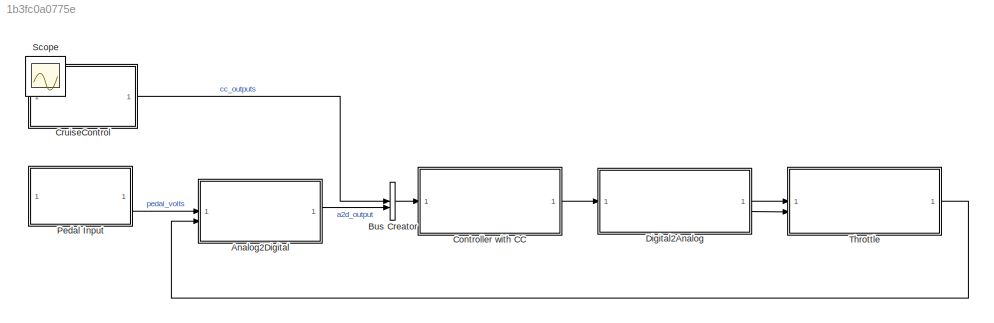
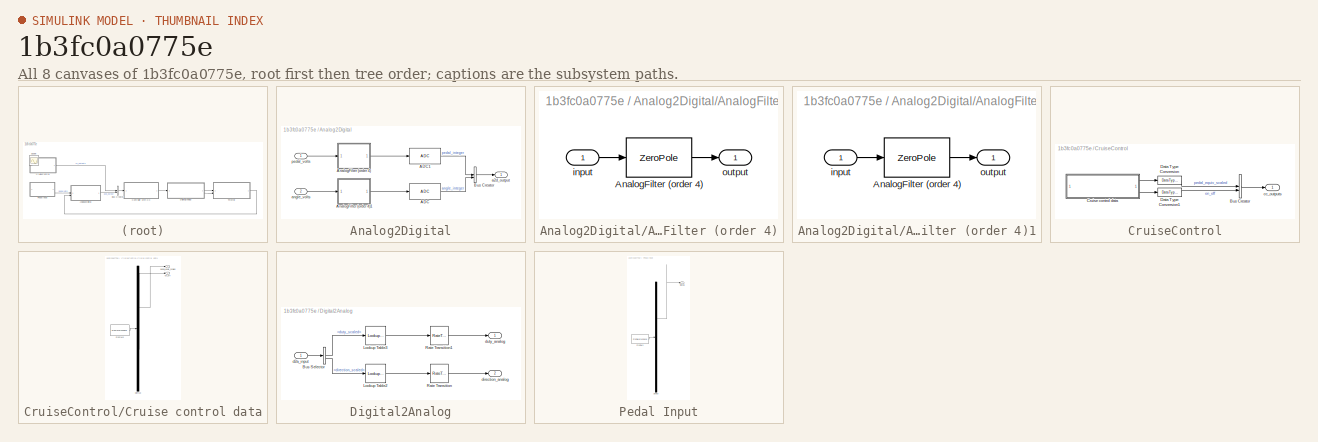
[diagram: thumbnail index - all 8 canvases of the model, root first then tree order]
MODEL slx_1b3fc0a0775e
KIND model
CONFIG AbsTol = auto
CONFIG EnableMultiTasking = on
CONFIG FixedStep = auto
CONFIG MaxStep = auto
CONFIG MinStep = auto
CONFIG PreLoadFcn = load busData\nload globData
CONFIG RelTol = 1e-3
CONFIG SampleTimeConstraint = Unconstrained
CONFIG SolverName = ode45
CONFIG StartTime = 0.0
CONFIG StopTime = 10.0
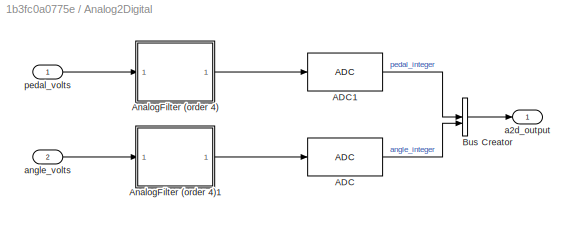
BLOCK [SubSystem] Analog2Digital
  AttributesFormatString = (Hardware / software interface)
  MinAlgLoopOccurrences = on
BLOCK [Reference] Analog2Digital/ADC  REF=adcUtils/ADC
  SourceBlock = adcUtils/ADC
BLOCK [Reference] Analog2Digital/ADC1  REF=adcUtils/ADC
  SourceBlock = adcUtils/ADC
BLOCK [SubSystem] Analog2Digital/AnalogFilter (order 4)
  VariantControl = analogFilter==1
BLOCK [ZeroPole] Analog2Digital/AnalogFilter (order 4)/AnalogFilter (order 4)
  Gain = 3.9899e9
  Poles = 1.0e2*[-2.2739+0.6809i,-2.2739-0.6809i,-1.6518+2.0864i,-1.6518-2.0864i]
  Zeros = []
BLOCK [Inport] Analog2Digital/AnalogFilter (order 4)/input
BLOCK [Outport] Analog2Digital/AnalogFilter (order 4)/output
  VectorParamsAs1DForOutWhenUnconnected = off
BLOCK [SubSystem] Analog2Digital/AnalogFilter (order 4)1
  VariantControl = analogFilter==1
BLOCK [ZeroPole] Analog2Digital/AnalogFilter (order 4)1/AnalogFilter (order 4)
  Gain = 3.9899e9
  Poles = 1.0e2*[-2.2739+0.6809i,-2.2739-0.6809i,-1.6518+2.0864i,-1.6518-2.0864i]
  Zeros = []
BLOCK [Inport] Analog2Digital/AnalogFilter (order 4)1/input
BLOCK [Outport] Analog2Digital/AnalogFilter (order 4)1/output
  VectorParamsAs1DForOutWhenUnconnected = off
BLOCK [BusCreator] Analog2Digital/Bus Creator
  DisplayOption = bar
  InheritFromInputs = on
  Inputs = 2
  OutDataTypeStr = Bus: a2d_output_bus
BLOCK [Outport] Analog2Digital/a2d_output
  OutDataTypeStr = Bus: a2d_output_bus
  SampleTime = Ts
  VectorParamsAs1DForOutWhenUnconnected = off
BLOCK [Inport] Analog2Digital/angle_volts
  OutDataTypeStr = double
  Port = 2
  PortDimensions = 1
  SampleTime = 0
BLOCK [Inport] Analog2Digital/pedal_volts
  OutDataTypeStr = double
  PortDimensions = 1
  SampleTime = 0
BLOCK [BusCreator] Bus Creator
  DisplayOption = bar
  InheritFromInputs = on
  Inputs = 2
  OutDataTypeStr = Bus: ctrl_input_bus
BLOCK [ModelReference] Controller with CC
  AttributesFormatString = (Software)
  ModelNameDialog = controller
  ModelReferenceVersion = 8.0
BLOCK [SubSystem] CruiseControl
  MinAlgLoopOccurrences = on
BLOCK [BusCreator] CruiseControl/Bus Creator
  DisplayOption = bar
  InheritFromInputs = on
  Inputs = 2
  OutDataTypeStr = Bus: cc_outputs_bus
BLOCK [SubSystem] CruiseControl/Cruise control data
  ClipboardFcn = sigbuilder_block('clipboard');
  CloseFcn = sigbuilder_block('close');
  ContinueFcn = sigbuilder_block('continue')
  CopyFcn = sigbuilder_block('copy');
  DeleteFcn = sigbuilder_block('delete');
  LoadFcn = sigbuilder_block('load');
  MaskHideContents = on
  ModelCloseFcn = sigbuilder_block('modelClose');
  NameChangeFcn = sigbuilder_block('namechange');
  OpenFcn = sigbuilder_block('open',[44.069 296.69 550.552 398.483 ]);
  PauseFcn = sigbuilder_block('pause')
  PreSaveFcn = sigbuilder_block('preSave');
  StartFcn = sigbuilder_block('start');
  StopFcn = sigbuilder_block('stop');
  Tag = STV Subsys
BLOCK [Demux] CruiseControl/Cruise control data/Demux
  DisplayOption = none
  Outputs = 2
  Tag = STV Demux
BLOCK [FromWorkspace] CruiseControl/Cruise control data/FromWs
  Tag = STV FromWs
  VariableName = tuvar
BLOCK [Outport] CruiseControl/Cruise control data/on_off
  Port = 2
  Tag = STV Outport
  VectorParamsAs1DForOutWhenUnconnected = off
BLOCK [Outport] CruiseControl/Cruise control data/pedal_equiv_scaled
  Tag = STV Outport
  VectorParamsAs1DForOutWhenUnconnected = off
BLOCK [DataTypeConversion] CruiseControl/Data Type Conversion
  OutDataTypeStr = double
  RndMeth = Floor
  SampleTime = Ts
  SaturateOnIntegerOverflow = off
BLOCK [DataTypeConversion] CruiseControl/Data Type Conversion1
  OutDataTypeStr = boolean
  RndMeth = Floor
  SampleTime = Ts
  SaturateOnIntegerOverflow = off
BLOCK [Outport] CruiseControl/cc_outputs
  OutDataTypeStr = Bus: cc_outputs_bus
  SampleTime = Ts
  VectorParamsAs1DForOutWhenUnconnected = off
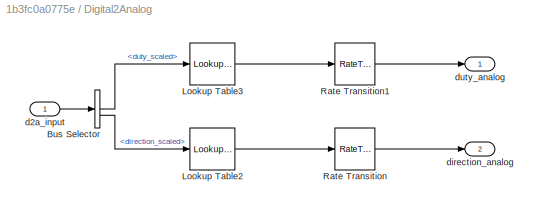
BLOCK [SubSystem] Digital2Analog
  AttributesFormatString = (Software / hardware interface)
  MinAlgLoopOccurrences = on
BLOCK [BusSelector] Digital2Analog/Bus Selector
  OutputSignals = duty_scaled,direction_scaled
BLOCK [Lookup_n-D] Digital2Analog/Lookup Table2
  AttributesFormatString = Output data type: %<OutDataTypeStr>
  BreakpointsForDimension1 = digital_range
  ExtrapMethod = Clip
  InputPortMap = u0
  NumberOfTableDimensions = 1
  OutDataTypeStr = double
  Table = direction_range_analog
BLOCK [Lookup_n-D] Digital2Analog/Lookup Table3
  AttributesFormatString = Output data type: %<OutDataTypeStr>
  BreakpointsForDimension1 = uint_range_10bit
  ExtrapMethod = Clip
  InputPortMap = u0
  NumberOfTableDimensions = 1
  OutDataTypeStr = double
  Table = duty_range_analog
BLOCK [RateTransition] Digital2Analog/Rate Transition
  Integrity = off
  OutPortSampleTime = 0
BLOCK [RateTransition] Digital2Analog/Rate Transition1
  Integrity = off
  OutPortSampleTime = 0
BLOCK [Inport] Digital2Analog/d2a_input
  OutDataTypeStr = Bus: d2a_input_bus
  PortDimensions = 1
  SampleTime = Ts
BLOCK [Outport] Digital2Analog/direction_analog
  OutDataTypeStr = double
  Port = 2
  PortDimensions = 1
  SampleTime = 0
  VectorParamsAs1DForOutWhenUnconnected = off
BLOCK [Outport] Digital2Analog/duty_analog
  OutDataTypeStr = double
  PortDimensions = 1
  SampleTime = 0
  VectorParamsAs1DForOutWhenUnconnected = off
BLOCK [SubSystem] Pedal Input
  AttributesFormatString = 0 - Pedal not pressed\n1 - Pedal fully pressed
  ClipboardFcn = sigbuilder_block('clipboard');
  CloseFcn = sigbuilder_block('close');
  ContinueFcn = sigbuilder_block('continue')
  CopyFcn = sigbuilder_block('copy');
  DeleteFcn = sigbuilder_block('delete');
  LoadFcn = sigbuilder_block('load');
  MaskHideContents = on
  ModelCloseFcn = sigbuilder_block('modelClose');
  NameChangeFcn = sigbuilder_block('namechange');
  OpenFcn = sigbuilder_block('open',[44.069 297.31 550.552 397.862 ]);
  PauseFcn = sigbuilder_block('pause')
  PreSaveFcn = sigbuilder_block('preSave');
  StartFcn = sigbuilder_block('start');
  StopFcn = sigbuilder_block('stop');
  Tag = STV Subsys
BLOCK [Demux] Pedal Input/Demux
  DisplayOption = none
  Outputs = 1
  Tag = STV Demux
BLOCK [FromWorkspace] Pedal Input/FromWs
  Tag = STV FromWs
  VariableName = tuvar
BLOCK [Outport] Pedal Input/Signal 1
  Tag = STV Outport
  VectorParamsAs1DForOutWhenUnconnected = off
BLOCK [Scope] Scope
  Floating = off
  IOType = viewer
  NumInputPorts = 1
  ScopeSpecificationString = Simulink.scopes.TimeScopeBlockCfg('CurrentConfiguration', extmgr.ConfigurationSet(extmgr.Configuration('Core','General UI',true),extmgr.Configuration('Core','Source UI',true),extmgr.Configuration('Sources','WiredSimulink',true,'DataLoggingMaxPoints','7500','DataLoggingLimitDataPoints',true,'DataLoggingSaveFormat','Array','DataLoggingDecimation','1','DataLoggingDecimateData',true),extmgr.Configurat...<+2117ch>
BLOCK [SubSystem] Throttle
  AttributesFormatString = (Hardware - physical system)
  ReferencedSubsystem = throttle
LINE Analog2Digital/ADC1:1 -> Analog2Digital/Bus Creator:1
LINE Analog2Digital/ADC:1 -> Analog2Digital/Bus Creator:2
LINE Analog2Digital/AnalogFilter (order 4)/AnalogFilter (order 4):1 -> Analog2Digital/AnalogFilter (order 4)/output:1
LINE Analog2Digital/AnalogFilter (order 4)/input:1 -> Analog2Digital/AnalogFilter (order 4)/AnalogFilter (order 4):1
LINE Analog2Digital/AnalogFilter (order 4)1/AnalogFilter (order 4):1 -> Analog2Digital/AnalogFilter (order 4)1/output:1
LINE Analog2Digital/AnalogFilter (order 4)1/input:1 -> Analog2Digital/AnalogFilter (order 4)1/AnalogFilter (order 4):1
LINE Analog2Digital/AnalogFilter (order 4)1:1 -> Analog2Digital/ADC:1
LINE Analog2Digital/AnalogFilter (order 4):1 -> Analog2Digital/ADC1:1
LINE Analog2Digital/Bus Creator:1 -> Analog2Digital/a2d_output:1
LINE Analog2Digital/angle_volts:1 -> Analog2Digital/AnalogFilter (order 4)1:1
LINE Analog2Digital/pedal_volts:1 -> Analog2Digital/AnalogFilter (order 4):1
LINE Analog2Digital:1 -> Bus Creator:2
LINE Bus Creator:1 -> Controller with CC:1
LINE Controller with CC:1 -> Digital2Analog:1
LINE CruiseControl/Bus Creator:1 -> CruiseControl/cc_outputs:1
LINE CruiseControl/Cruise control data/Demux:1 -> CruiseControl/Cruise control data/pedal_equiv_scaled:1
LINE CruiseControl/Cruise control data/Demux:2 -> CruiseControl/Cruise control data/on_off:1
LINE CruiseControl/Cruise control data/FromWs:1 -> CruiseControl/Cruise control data/Demux:1
LINE CruiseControl/Cruise control data:1 -> CruiseControl/Data Type Conversion:1
LINE CruiseControl/Cruise control data:2 -> CruiseControl/Data Type Conversion1:1
LINE CruiseControl/Data Type Conversion1:1 -> CruiseControl/Bus Creator:2
LINE CruiseControl/Data Type Conversion:1 -> CruiseControl/Bus Creator:1
LINE CruiseControl:1 -> Bus Creator:1
LINE Digital2Analog/Bus Selector:1 -> Digital2Analog/Lookup Table3:1
LINE Digital2Analog/Bus Selector:2 -> Digital2Analog/Lookup Table2:1
LINE Digital2Analog/Lookup Table2:1 -> Digital2Analog/Rate Transition:1
LINE Digital2Analog/Lookup Table3:1 -> Digital2Analog/Rate Transition1:1
LINE Digital2Analog/Rate Transition1:1 -> Digital2Analog/duty_analog:1
LINE Digital2Analog/Rate Transition:1 -> Digital2Analog/direction_analog:1
LINE Digital2Analog/d2a_input:1 -> Digital2Analog/Bus Selector:1
LINE Digital2Analog:1 -> Throttle:1
LINE Digital2Analog:2 -> Throttle:2
LINE Pedal Input/Demux:1 -> Pedal Input/Signal 1:1
LINE Pedal Input/FromWs:1 -> Pedal Input/Demux:1
LINE Pedal Input:1 -> Analog2Digital:1
LINE Throttle:1 -> Analog2Digital:2
